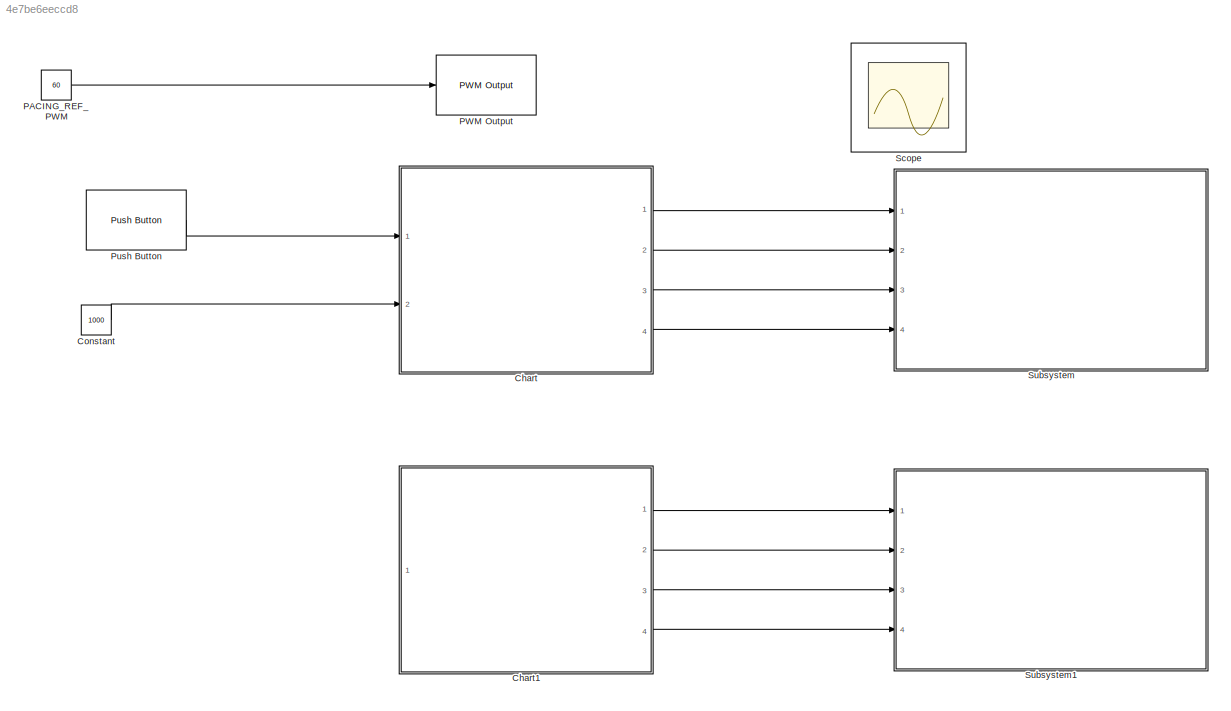
MODEL slx_4e7be6eeccd8
KIND model
CONFIG AbsTol = auto
CONFIG EnableMultiTasking = on
CONFIG FixedStep = 1e-3
CONFIG MaxStep = auto
CONFIG MinStep = auto
CONFIG RelTol = 1e-3
CONFIG SampleTimeConstraint = Unconstrained
CONFIG Solver = FixedStepAuto
CONFIG SolverName = FixedStepAuto
CONFIG StartTime = 0.0
CONFIG StopTime = inf
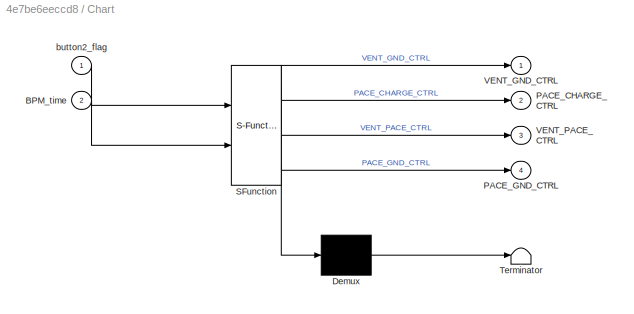
BLOCK [SubSystem] Chart
  ErrorFcn = Stateflow.Translate.translate
  PermitHierarchicalResolution = ExplicitOnly
  Ports = [2, 4]
  RequestExecContextInheritance = off
  SFBlockType = Chart
  TreatAsAtomicUnit = on
  Variant = off
BLOCK [Demux] Chart/ Demux 
  Outputs = 1
  Ports = [1, 1]
BLOCK [S-Function] Chart/ SFunction 
  EnableBusSupport = on
  FunctionName = sf_sfun
  PortCounts = [2 5]
  Ports = [2, 5]
  SFcnIsStateOwnerBlock = off
  SFunctionDeploymentMode = off
  Tag = Stateflow S-Function test1 3
BLOCK [Terminator] Chart/ Terminator 
BLOCK [Inport] Chart/BPM_time
  IconDisplay = Port number
  Port = 2
BLOCK [Outport] Chart/PACE_CHARGE_CTRL
  IconDisplay = Port number
  Port = 2
BLOCK [Outport] Chart/PACE_GND_CTRL
  IconDisplay = Port number
  Port = 4
BLOCK [Outport] Chart/VENT_GND_CTRL
  IconDisplay = Port number
BLOCK [Outport] Chart/VENT_PACE_CTRL
  IconDisplay = Port number
  Port = 3
BLOCK [Inport] Chart/button2_flag
  IconDisplay = Port number
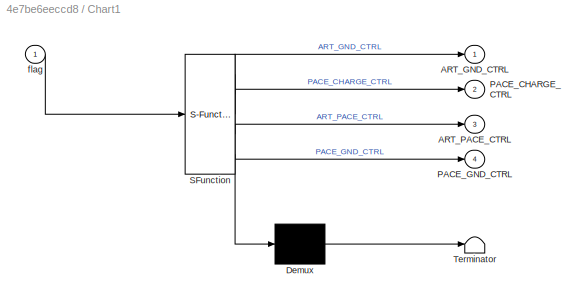
BLOCK [SubSystem] Chart1
  Commented = on
  ErrorFcn = Stateflow.Translate.translate
  PermitHierarchicalResolution = ExplicitOnly
  Ports = [1, 4]
  RequestExecContextInheritance = off
  SFBlockType = Chart
  TreatAsAtomicUnit = on
  Variant = off
BLOCK [Demux] Chart1/ Demux 
  Outputs = 1
  Ports = [1, 1]
BLOCK [S-Function] Chart1/ SFunction 
  EnableBusSupport = on
  FunctionName = sf_sfun
  PortCounts = [1 5]
  Ports = [1, 5]
  SFcnIsStateOwnerBlock = off
  SFunctionDeploymentMode = off
  Tag = Stateflow S-Function test1 1
BLOCK [Terminator] Chart1/ Terminator 
BLOCK [Outport] Chart1/ART_GND_CTRL
  IconDisplay = Port number
BLOCK [Outport] Chart1/ART_PACE_CTRL
  IconDisplay = Port number
  Port = 3
BLOCK [Outport] Chart1/PACE_CHARGE_CTRL
  IconDisplay = Port number
  Port = 2
BLOCK [Outport] Chart1/PACE_GND_CTRL
  IconDisplay = Port number
  Port = 4
BLOCK [Inport] Chart1/flag
  IconDisplay = Port number
BLOCK [Constant] Constant
  Value = 1000
BLOCK [Constant] PACING_REF_PWM
  OutDataTypeStr = uint16
  Value = 60
BLOCK [Reference] PWM Output  REF=frdmk64flib/PWM Output
  Ports = [1]
  SourceBlock = frdmk64flib/PWM Output
  SourceProductBaseCode = EC_FRDM_K64F
  SourceProductName = Simulink Coder Support Package for NXP FRDM-K64F Board
  SourceType = freedomk64f.PWMOutput
BLOCK [Reference] Push Button  REF=frdmk64flib/Push Button
  Ports = [0, 1]
  SourceBlock = frdmk64flib/Push Button
  SourceProductBaseCode = EC_FRDM_K64F
  SourceProductName = Simulink Coder Support Package for NXP FRDM-K64F Board
  SourceType = freedomk64f.PushButton
BLOCK [Scope] Scope
  NumInputPorts = 4
  Ports = [4]
  ScopeSpecificationString = Simulink.scopes.TimeScopeBlockCfg('CurrentConfiguration', extmgr.ConfigurationSet(extmgr.Configuration('Core','General UI',true),extmgr.Configuration('Core','Source UI',true),extmgr.Configuration('Sources','WiredSimulink',true),extmgr.Configuration('Visuals','Time Domain',true,'SerializedDisplays',{struct('MinYLimReal','-0.125','MaxYLimReal','1.125','YLabelReal','','MinYLimMag','0.00000','MaxYLimM...<+1447ch>
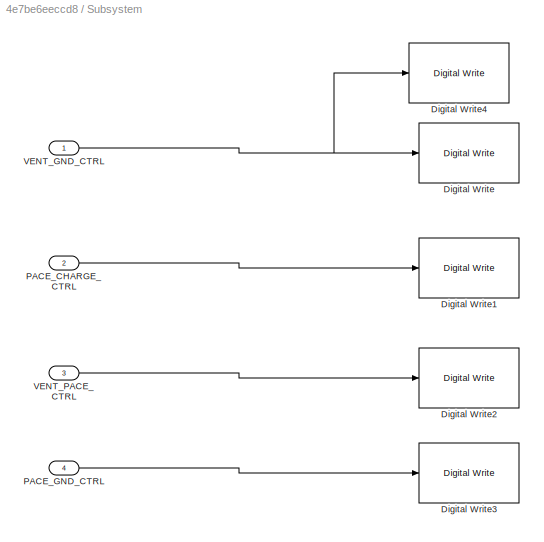
BLOCK [SubSystem] Subsystem
  Ports = [4]
  RequestExecContextInheritance = off
  Variant = off
BLOCK [Reference] Subsystem/Digital Write  REF=frdmk64flib/Digital Write
  Ports = [1]
  SourceBlock = frdmk64flib/Digital Write
  SourceProductBaseCode = EC_FRDM_K64F
  SourceProductName = Simulink Coder Support Package for NXP FRDM-K64F Board
  SourceType = freedomk64f.DigitalWrite
BLOCK [Reference] Subsystem/Digital Write1  REF=frdmk64flib/Digital Write
  Ports = [1]
  SourceBlock = frdmk64flib/Digital Write
  SourceProductBaseCode = EC_FRDM_K64F
  SourceProductName = Simulink Coder Support Package for NXP FRDM-K64F Board
  SourceType = freedomk64f.DigitalWrite
BLOCK [Reference] Subsystem/Digital Write2  REF=frdmk64flib/Digital Write
  Ports = [1]
  SourceBlock = frdmk64flib/Digital Write
  SourceProductBaseCode = EC_FRDM_K64F
  SourceProductName = Simulink Coder Support Package for NXP FRDM-K64F Board
  SourceType = freedomk64f.DigitalWrite
BLOCK [Reference] Subsystem/Digital Write3  REF=frdmk64flib/Digital Write
  Ports = [1]
  SourceBlock = frdmk64flib/Digital Write
  SourceProductBaseCode = EC_FRDM_K64F
  SourceProductName = Simulink Coder Support Package for NXP FRDM-K64F Board
  SourceType = freedomk64f.DigitalWrite
BLOCK [Reference] Subsystem/Digital Write4  REF=frdmk64flib/Digital Write
  Ports = [1]
  SourceBlock = frdmk64flib/Digital Write
  SourceProductBaseCode = EC_FRDM_K64F
  SourceProductName = Simulink Coder Support Package for NXP FRDM-K64F Board
  SourceType = freedomk64f.DigitalWrite
BLOCK [Inport] Subsystem/PACE_CHARGE_CTRL
  IconDisplay = Port number
  Port = 2
BLOCK [Inport] Subsystem/PACE_GND_CTRL
  IconDisplay = Port number
  Port = 4
BLOCK [Inport] Subsystem/VENT_GND_CTRL
  IconDisplay = Port number
BLOCK [Inport] Subsystem/VENT_PACE_CTRL
  IconDisplay = Port number
  Port = 3
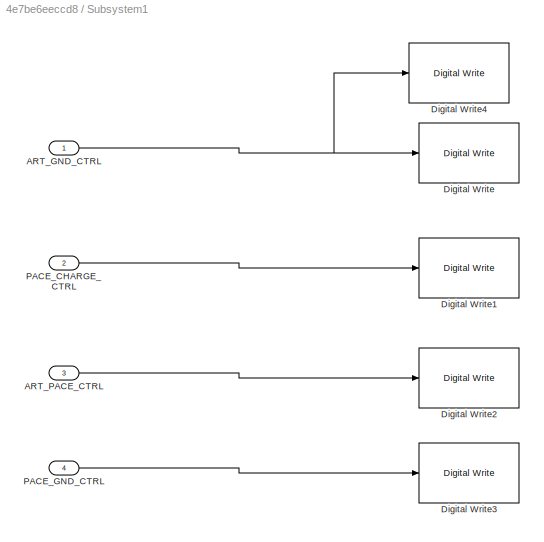
BLOCK [SubSystem] Subsystem1
  Commented = on
  Ports = [4]
  RequestExecContextInheritance = off
  Variant = off
BLOCK [Inport] Subsystem1/ART_GND_CTRL
  IconDisplay = Port number
BLOCK [Inport] Subsystem1/ART_PACE_CTRL
  IconDisplay = Port number
  Port = 3
BLOCK [Reference] Subsystem1/Digital Write  REF=frdmk64flib/Digital Write
  Ports = [1]
  SourceBlock = frdmk64flib/Digital Write
  SourceProductBaseCode = EC_FRDM_K64F
  SourceProductName = Simulink Coder Support Package for NXP FRDM-K64F Board
  SourceType = freedomk64f.DigitalWrite
BLOCK [Reference] Subsystem1/Digital Write1  REF=frdmk64flib/Digital Write
  Ports = [1]
  SourceBlock = frdmk64flib/Digital Write
  SourceProductBaseCode = EC_FRDM_K64F
  SourceProductName = Simulink Coder Support Package for NXP FRDM-K64F Board
  SourceType = freedomk64f.DigitalWrite
BLOCK [Reference] Subsystem1/Digital Write2  REF=frdmk64flib/Digital Write
  Ports = [1]
  SourceBlock = frdmk64flib/Digital Write
  SourceProductBaseCode = EC_FRDM_K64F
  SourceProductName = Simulink Coder Support Package for NXP FRDM-K64F Board
  SourceType = freedomk64f.DigitalWrite
BLOCK [Reference] Subsystem1/Digital Write3  REF=frdmk64flib/Digital Write
  Ports = [1]
  SourceBlock = frdmk64flib/Digital Write
  SourceProductBaseCode = EC_FRDM_K64F
  SourceProductName = Simulink Coder Support Package for NXP FRDM-K64F Board
  SourceType = freedomk64f.DigitalWrite
BLOCK [Reference] Subsystem1/Digital Write4  REF=frdmk64flib/Digital Write
  Ports = [1]
  SourceBlock = frdmk64flib/Digital Write
  SourceProductBaseCode = EC_FRDM_K64F
  SourceProductName = Simulink Coder Support Package for NXP FRDM-K64F Board
  SourceType = freedomk64f.DigitalWrite
BLOCK [Inport] Subsystem1/PACE_CHARGE_CTRL
  IconDisplay = Port number
  Port = 2
BLOCK [Inport] Subsystem1/PACE_GND_CTRL
  IconDisplay = Port number
  Port = 4
LINE Chart1:1 -> Subsystem1:1
LINE Chart1:2 -> Subsystem1:2
LINE Chart1:3 -> Subsystem1:3
LINE Chart1:4 -> Subsystem1:4
LINE Chart:1 -> Subsystem:1
LINE Chart:2 -> Subsystem:2
LINE Chart:3 -> Subsystem:3
LINE Chart:4 -> Subsystem:4
LINE Constant:1 -> Chart:2
LINE PACING_REF_PWM:1 -> PWM Output:1
LINE Push Button:1 -> Chart:1
LINE Subsystem/PACE_CHARGE_CTRL:1 -> Subsystem/Digital Write1:1
LINE Subsystem/PACE_GND_CTRL:1 -> Subsystem/Digital Write3:1
NET Subsystem/VENT_GND_CTRL:1 -> Subsystem/Digital Write4:1, Subsystem/Digital Write:1
LINE Subsystem/VENT_PACE_CTRL:1 -> Subsystem/Digital Write2:1
NET Subsystem1/ART_GND_CTRL:1 -> Subsystem1/Digital Write4:1, Subsystem1/Digital Write:1
LINE Subsystem1/ART_PACE_CTRL:1 -> Subsystem1/Digital Write2:1
LINE Subsystem1/PACE_CHARGE_CTRL:1 -> Subsystem1/Digital Write1:1
LINE Subsystem1/PACE_GND_CTRL:1 -> Subsystem1/Digital Write3:1
note: NET lines group one-source signal fan-out (src -> all destinations, sorted); 1:1 wires keep LINE
CHART Chart1 states=2 transitions=4
  STATE_LABEL 'Charging_state\nentry:\nPACE_CHARGE_CTRL = true;\nART_PACE_CTRL = false;\nART_GND_CTRL = true;\nPACE_GND_CTRL = true;'
  STATE_LABEL 'Pacing_state\nentry:\nPACE_CHARGE_CTRL = false;\nART_PACE_CTRL = true;\nART_GND_CTRL = false;\nPACE_GND_CTRL = true;'
CHART Chart states=3 transitions=6
  STATE_LABEL 'Charging_state\nentry:\nPACE_CHARGE_CTRL = true;\nVENT_PACE_CTRL = false;\nVENT_GND_CTRL = true;\nPACE_GND_CTRL = true;'
  STATE_LABEL 'Pacing_state\nentry:\nPACE_CHARGE_CTRL = false;\nVENT_PACE_CTRL = true;\nVENT_GND_CTRL = false;\nPACE_GND_CTRL = true;'
  STATE_LABEL 'Delay_state\n'
